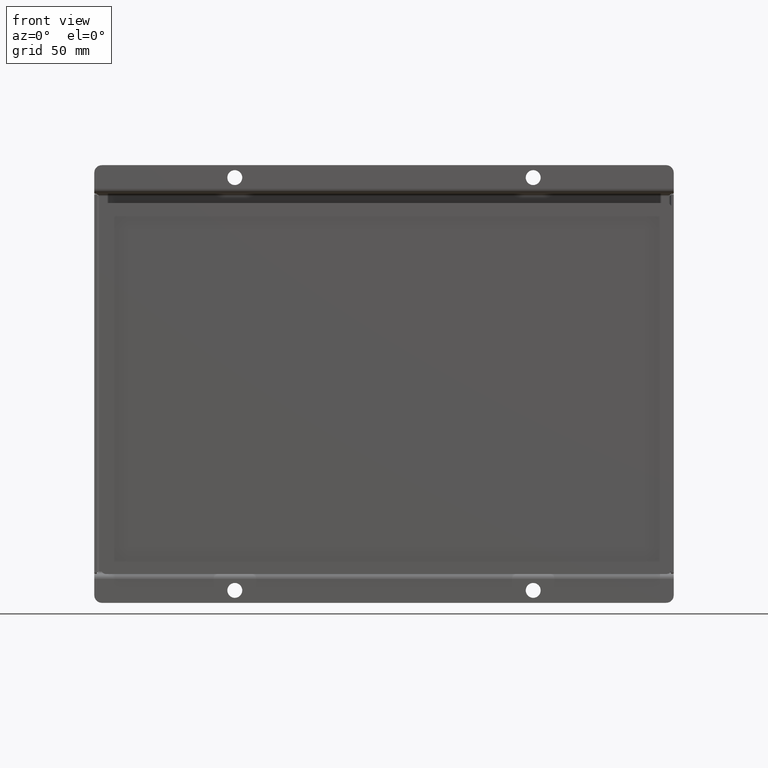
[diagram: clean part render]
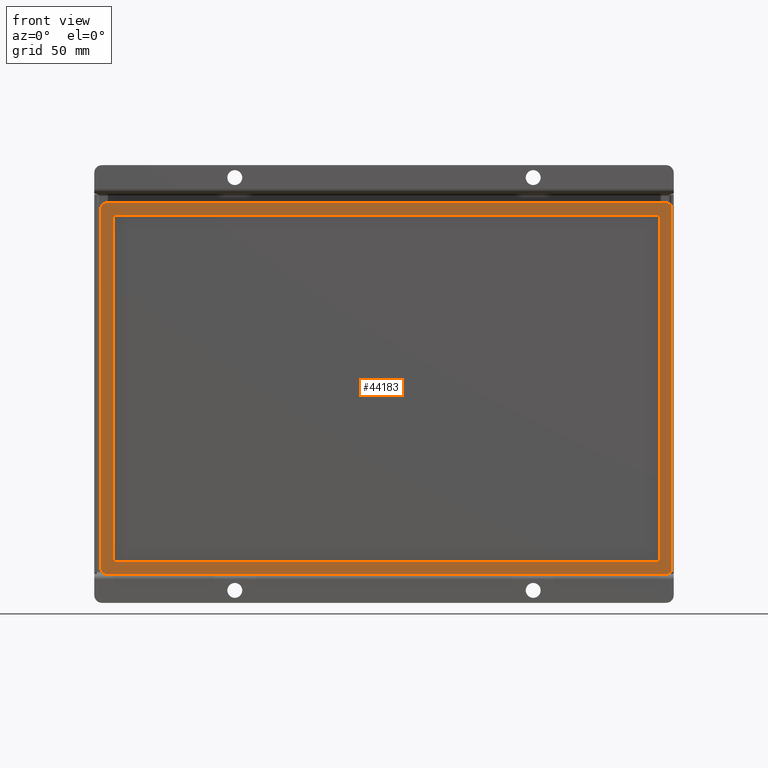
[diagram: same view with one face highlighted and labeled with its STEP entity id]
A machine part, front view. The second image highlights one B-rep face of the part: STEP entity #44183.
In plain terms, the highlighted planar face has unit normal (-0, -1, -0).
Its self-contained STEP definition (entity closure, byte-faithful):
#1240=FACE_BOUND('',#6667,.T.);
#2366=CIRCLE('',#46492,2.);
#2367=CIRCLE('',#46494,2.);
#2368=CIRCLE('',#46495,2.);
#2369=CIRCLE('',#46496,2.);
#4210=FACE_OUTER_BOUND('',#6666,.T.);
#6666=EDGE_LOOP('',(#28974,#28975,#28976,#28977,#28978,#28979,#28980,#28981));
#6667=EDGE_LOOP('',(#28982,#28983,#28984,#28985));
#9607=LINE('',#67730,#13474);
#9608=LINE('',#67734,#13475);
#9609=LINE('',#67738,#13476);
#9610=LINE('',#67741,#13477);
#9611=LINE('',#67744,#13478);
#9612=LINE('',#67746,#13479);
#9613=LINE('',#67748,#13480);
#9614=LINE('',#67749,#13481);
#13474=VECTOR('',#50758,10.);
#13475=VECTOR('',#50761,10.);
#13476=VECTOR('',#50764,10.);
#13477=VECTOR('',#50767,10.);
#13478=VECTOR('',#50768,10.);
#13479=VECTOR('',#50769,10.);
#13480=VECTOR('',#50770,10.);
#13481=VECTOR('',#50771,10.);
#17433=VERTEX_POINT('',#67723);
#17434=VERTEX_POINT('',#67724);
#17435=VERTEX_POINT('',#67729);
#17436=VERTEX_POINT('',#67731);
#17437=VERTEX_POINT('',#67733);
#17438=VERTEX_POINT('',#67735);
#17439=VERTEX_POINT('',#67737);
#17440=VERTEX_POINT('',#67739);
#17441=VERTEX_POINT('',#67742);
#17442=VERTEX_POINT('',#67743);
#17443=VERTEX_POINT('',#67745);
#17444=VERTEX_POINT('',#67747);
#21913=EDGE_CURVE('',#17433,#17434,#2366,.T.);
#21916=EDGE_CURVE('',#17433,#17435,#9607,.T.);
#21917=EDGE_CURVE('',#17436,#17435,#2367,.T.);
#21918=EDGE_CURVE('',#17436,#17437,#9608,.T.);
#21919=EDGE_CURVE('',#17438,#17437,#2368,.T.);
#21920=EDGE_CURVE('',#17438,#17439,#9609,.T.);
#21921=EDGE_CURVE('',#17440,#17439,#2369,.T.);
#21922=EDGE_CURVE('',#17440,#17434,#9610,.T.);
#21923=EDGE_CURVE('',#17441,#17442,#9611,.T.);
#21924=EDGE_CURVE('',#17442,#17443,#9612,.T.);
#21925=EDGE_CURVE('',#17443,#17444,#9613,.T.);
#21926=EDGE_CURVE('',#17444,#17441,#9614,.T.);
#28974=ORIENTED_EDGE('',*,*,#21913,.F.);
#28975=ORIENTED_EDGE('',*,*,#21916,.T.);
#28976=ORIENTED_EDGE('',*,*,#21917,.F.);
#28977=ORIENTED_EDGE('',*,*,#21918,.T.);
#28978=ORIENTED_EDGE('',*,*,#21919,.F.);
#28979=ORIENTED_EDGE('',*,*,#21920,.T.);
#28980=ORIENTED_EDGE('',*,*,#21921,.F.);
#28981=ORIENTED_EDGE('',*,*,#21922,.T.);
#28982=ORIENTED_EDGE('',*,*,#21923,.T.);
#28983=ORIENTED_EDGE('',*,*,#21924,.T.);
#28984=ORIENTED_EDGE('',*,*,#21925,.T.);
#28985=ORIENTED_EDGE('',*,*,#21926,.T.);
#40178=PLANE('',#46493);
#44183=ADVANCED_FACE('',(#4210,#1240),#40178,.T.);
#46492=AXIS2_PLACEMENT_3D('',#67725,#50752,#50753);
#46493=AXIS2_PLACEMENT_3D('',#67728,#50756,#50757);
#46494=AXIS2_PLACEMENT_3D('',#67732,#50759,#50760);
#46495=AXIS2_PLACEMENT_3D('',#67736,#50762,#50763);
#46496=AXIS2_PLACEMENT_3D('',#67740,#50765,#50766);
#50752=DIRECTION('center_axis',(7.68274672695624E-30,1.,3.31990727226536E-31));
#50753=DIRECTION('ref_axis',(-0.707106781186548,5.19776941425658E-30,0.707106781186547));
#50756=DIRECTION('center_axis',(-7.68274672695624E-30,-1.,-3.31990727226536E-31));
#50757=DIRECTION('ref_axis',(1.,-7.68274672695624E-30,6.66133814775096E-16));
#50758=DIRECTION('',(6.66133814775096E-16,3.31990727226531E-31,-1.));
#50759=DIRECTION('center_axis',(7.68274672695624E-30,1.,3.31990727226536E-31));
#50760=DIRECTION('ref_axis',(-0.70710678118655,5.66727520328247E-30,-0.707106781186545));
#50761=DIRECTION('',(1.,-7.68274672695624E-30,8.20963139223824E-16));
#50762=DIRECTION('center_axis',(7.68274672695624E-30,1.,3.31990727226536E-31));
#50763=DIRECTION('ref_axis',(0.707106781186545,-5.19776941425655E-30,-0.70710678118655));
#50764=DIRECTION('',(-6.66133814775096E-16,-3.31990727226531E-31,1.));
#50765=DIRECTION('center_axis',(7.68274672695624E-30,1.,3.31990727226536E-31));
#50766=DIRECTION('ref_axis',(0.707106781186547,-5.66727520328244E-30,0.707106781186548));
#50767=DIRECTION('',(-1.,7.68274672695624E-30,-6.66133814775096E-16));
#50768=DIRECTION('',(1.,-7.68274672695624E-30,8.20963139223824E-16));
#50769=DIRECTION('',(9.21357498596971E-16,3.31990727226529E-31,-1.));
#50770=DIRECTION('',(-1.,7.68274672695624E-30,-8.20963139223824E-16));
#50771=DIRECTION('',(-9.21357498596971E-16,-3.31990727226529E-31,1.));
#67723=CARTESIAN_POINT('',(-113.78,-0.999999999999989,70.7999999999999));
#67724=CARTESIAN_POINT('',(-111.78,-0.999999999999989,72.7999999999999));
#67725=CARTESIAN_POINT('Origin',(-111.78,-0.999999999999989,70.7999999999999));
#67728=CARTESIAN_POINT('Origin',(113.18,-0.999999999999989,-1.79999999999991));
#67729=CARTESIAN_POINT('',(-113.78,-0.999999999999989,-74.4000000000001));
#67730=CARTESIAN_POINT('',(-113.78,-0.999999999999989,72.7999999999999));
#67731=CARTESIAN_POINT('',(-111.78,-0.999999999999989,-76.4000000000001));
#67732=CARTESIAN_POINT('Origin',(-111.78,-0.999999999999989,-74.4000000000001));
#67733=CARTESIAN_POINT('',(113.68,-0.999999999999989,-76.3999999999999));
#67734=CARTESIAN_POINT('',(-113.78,-0.999999999999989,-76.4000000000001));
#67735=CARTESIAN_POINT('',(115.68,-0.999999999999989,-74.3999999999999));
#67736=CARTESIAN_POINT('Origin',(113.68,-0.999999999999989,-74.3999999999999));
#67737=CARTESIAN_POINT('',(115.68,-0.999999999999989,70.8000000000001));
#67738=CARTESIAN_POINT('',(115.68,-0.999999999999989,-76.3999999999999));
#67739=CARTESIAN_POINT('',(113.68,-0.999999999999989,72.8000000000001));
#67740=CARTESIAN_POINT('Origin',(113.68,-0.999999999999989,70.8000000000001));
#67741=CARTESIAN_POINT('',(115.68,-0.999999999999989,72.8000000000001));
#67742=CARTESIAN_POINT('',(-108.78,-0.999999999999989,67.7999999999999));
#67743=CARTESIAN_POINT('',(110.68,-0.999999999999989,67.8000000000001));
#67744=CARTESIAN_POINT('',(-113.78,-0.999999999999989,67.7999999999999));
#67745=CARTESIAN_POINT('',(110.68,-0.999999999999989,-71.3999999999999));
#67746=CARTESIAN_POINT('',(110.68,-0.999999999999989,67.8000000000001));
#67747=CARTESIAN_POINT('',(-108.78,-0.999999999999989,-71.4000000000001));
#67748=CARTESIAN_POINT('',(115.68,-0.999999999999989,-71.3999999999999));
#67749=CARTESIAN_POINT('',(-108.78,-0.999999999999989,-71.4000000000001));